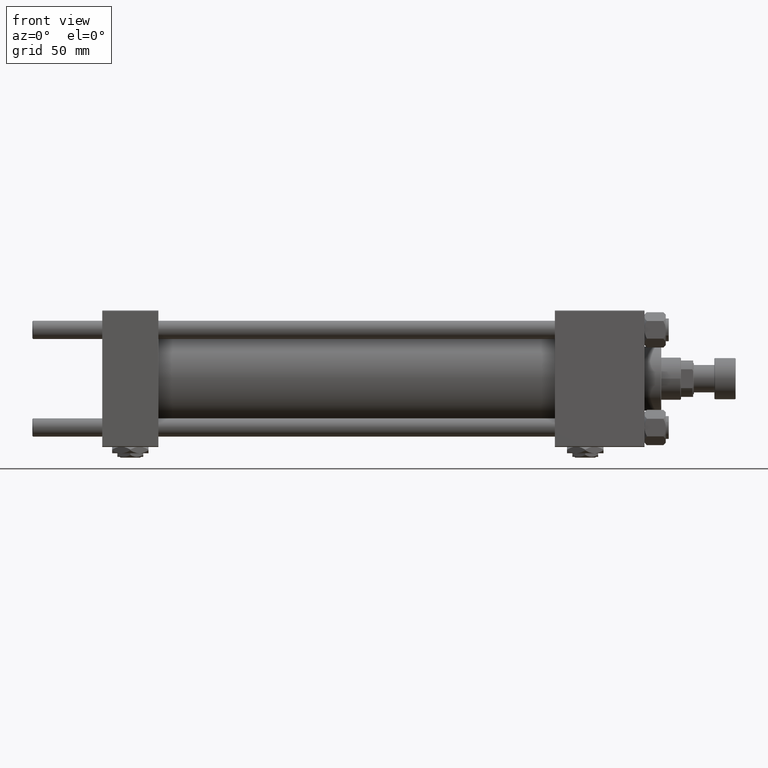
[diagram: clean part render]
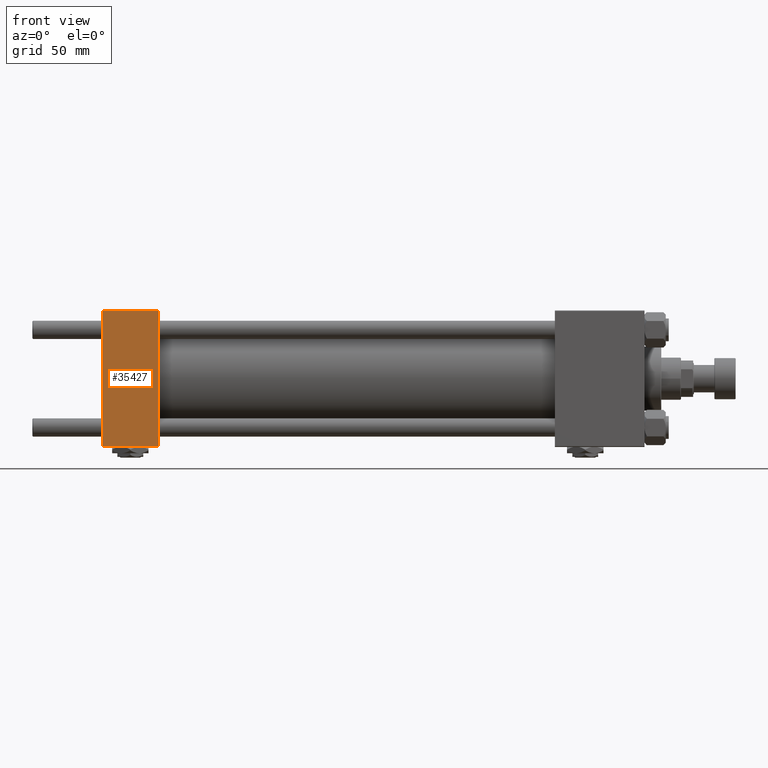
[diagram: same view with one face highlighted and labeled with its STEP entity id]
A machine part, front view. The second image highlights one B-rep face of the part: STEP entity #35427.
In plain terms, the highlighted planar face has unit normal (0, 1, 0).
Its self-contained STEP definition (entity closure, byte-faithful):
#513 = DIRECTION ( 'NONE',  ( -0.000000000000000000, 1.000000000000000000, 7.709882115452478166E-17 ) ) ;
#3250 = FACE_OUTER_BOUND ( 'NONE', #39914, .T. ) ;
#4026 = EDGE_CURVE ( 'NONE', #42831, #52148, #51593, .T. ) ;
#5812 = DIRECTION ( 'NONE',  ( 1.000000000000000000, 0.000000000000000000, 0.000000000000000000 ) ) ;
#11116 = VERTEX_POINT ( 'NONE', #40594 ) ;
#15011 = VECTOR ( 'NONE', #49103, 1000.000000000000000 ) ;
#16429 = CARTESIAN_POINT ( 'NONE',  ( 0.000000000000000000, -45.00000000000000711, 45.00000000000000000 ) ) ;
#17476 = DIRECTION ( 'NONE',  ( 0.000000000000000000, 7.709882115452476934E-17, -1.000000000000000000 ) ) ;
#18092 = EDGE_CURVE ( 'NONE', #11116, #42831, #25292, .T. ) ;
#18677 = VECTOR ( 'NONE', #17476, 1000.000000000000000 ) ;
#18711 = CARTESIAN_POINT ( 'NONE',  ( 37.00000000000000000, -45.00000000000000711, 45.00000000000000000 ) ) ;
#19030 = ORIENTED_EDGE ( 'NONE', *, *, #4026, .T. ) ;
#20952 = ORIENTED_EDGE ( 'NONE', *, *, #26874, .T. ) ;
#22299 = CARTESIAN_POINT ( 'NONE',  ( 0.000000000000000000, -45.00000000000000000, -44.49999999999995737 ) ) ;
#23181 = LINE ( 'NONE', #50237, #47289 ) ;
#24858 = DIRECTION ( 'NONE',  ( 0.000000000000000000, -7.709882115452478166E-17, 1.000000000000000000 ) ) ;
#25292 = LINE ( 'NONE', #29522, #15011 ) ;
#26874 = EDGE_CURVE ( 'NONE', #52148, #34101, #23181, .T. ) ;
#29389 = EDGE_CURVE ( 'NONE', #11116, #34101, #46736, .T. ) ;
#29522 = CARTESIAN_POINT ( 'NONE',  ( 37.00000000000000000, -45.00000000000000711, 44.49999999999997158 ) ) ;
#29704 = VECTOR ( 'NONE', #40227, 1000.000000000000000 ) ;
#34101 = VERTEX_POINT ( 'NONE', #51653 ) ;
#34935 = AXIS2_PLACEMENT_3D ( 'NONE', #36760, #513, #24858 ) ;
#35427 = ADVANCED_FACE ( 'NONE', ( #3250 ), #47946, .F. ) ;
#36760 = CARTESIAN_POINT ( 'NONE',  ( 37.00000000000000000, -45.00000000000000711, 45.00000000000000000 ) ) ;
#39914 = EDGE_LOOP ( 'NONE', ( #19030, #20952, #44003, #51438 ) ) ;
#40227 = DIRECTION ( 'NONE',  ( 0.000000000000000000, 7.709882115452476934E-17, -1.000000000000000000 ) ) ;
#40594 = CARTESIAN_POINT ( 'NONE',  ( 37.00000000000000000, -45.00000000000000711, 44.49999999999997158 ) ) ;
#42831 = VERTEX_POINT ( 'NONE', #49001 ) ;
#44003 = ORIENTED_EDGE ( 'NONE', *, *, #29389, .F. ) ;
#46736 = LINE ( 'NONE', #18711, #18677 ) ;
#47289 = VECTOR ( 'NONE', #5812, 1000.000000000000000 ) ;
#47946 = PLANE ( 'NONE',  #34935 ) ;
#49001 = CARTESIAN_POINT ( 'NONE',  ( 0.000000000000000000, -45.00000000000000711, 44.49999999999997158 ) ) ;
#49103 = DIRECTION ( 'NONE',  ( -1.000000000000000000, 0.000000000000000000, 0.000000000000000000 ) ) ;
#50237 = CARTESIAN_POINT ( 'NONE',  ( 37.00000000000000000, -45.00000000000000000, -44.49999999999998579 ) ) ;
#51438 = ORIENTED_EDGE ( 'NONE', *, *, #18092, .T. ) ;
#51593 = LINE ( 'NONE', #16429, #29704 ) ;
#51653 = CARTESIAN_POINT ( 'NONE',  ( 37.00000000000000000, -45.00000000000000000, -44.49999999999995737 ) ) ;
#52148 = VERTEX_POINT ( 'NONE', #22299 ) ;